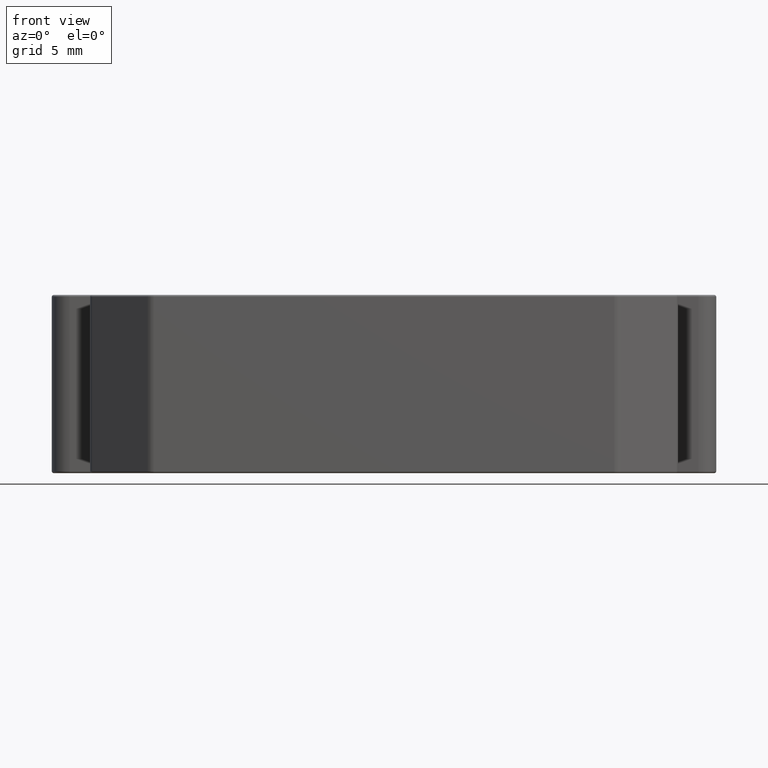
[diagram: clean part render]
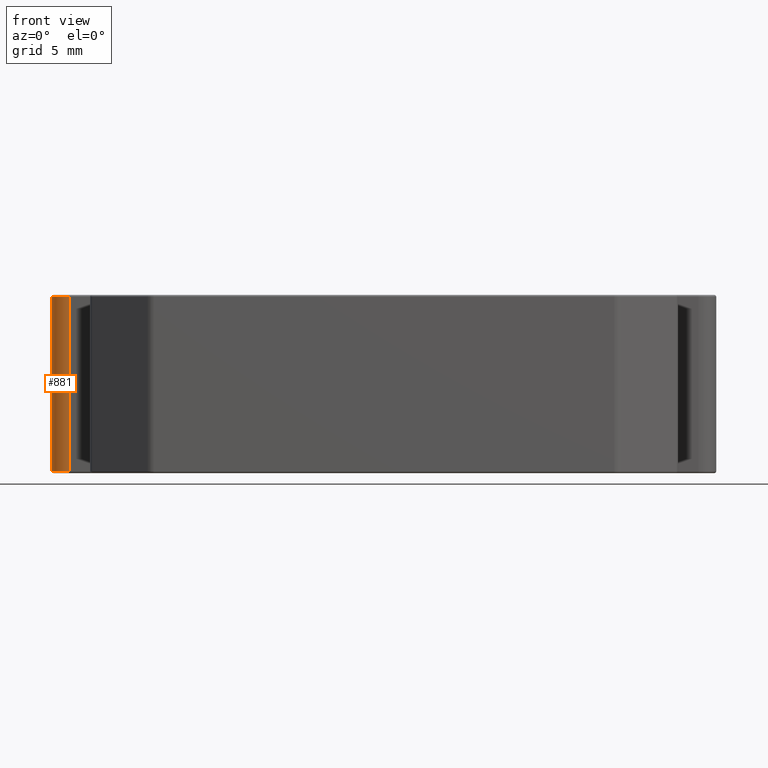
[diagram: same view with one face highlighted and labeled with its STEP entity id]
A machine part, front view. The second image highlights one B-rep face of the part: STEP entity #881.
In plain terms, the highlighted cylindrical surface (edge-blend (fillet) strip) has radius 1 mm, axis along (0, 0, 1).
Its self-contained STEP definition (entity closure, byte-faithful):
#3 = VERTEX_POINT ( 'NONE', #147 ) ;
#122 = VECTOR ( 'NONE', #2466, 1000.000000000000000 ) ;
#140 = VERTEX_POINT ( 'NONE', #2900 ) ;
#147 = CARTESIAN_POINT ( 'NONE',  ( -17.98039802197973500, 10.94384169598078000, 4.899999999999998600 ) ) ;
#293 = CARTESIAN_POINT ( 'NONE',  ( -17.98039802197973500, 10.94384169598078000, -5.000000000000000000 ) ) ;
#296 = CIRCLE ( 'NONE', #2524, 1.000000000000000900 ) ;
#346 = CARTESIAN_POINT ( 'NONE',  ( -17.64999999999999900, 9.999999999999998200, 4.899999999999998600 ) ) ;
#502 = VERTEX_POINT ( 'NONE', #2887 ) ;
#510 = DIRECTION ( 'NONE',  ( 1.000000000000000000, 0.0000000000000000000, 0.0000000000000000000 ) ) ;
#511 = LINE ( 'NONE', #293, #1156 ) ;
#528 = AXIS2_PLACEMENT_3D ( 'NONE', #346, #1092, #2539 ) ;
#643 = EDGE_CURVE ( 'NONE', #140, #502, #296, .T. ) ;
#827 = DIRECTION ( 'NONE',  ( 0.0000000000000000000, 0.0000000000000000000, 1.000000000000000000 ) ) ;
#881 = ADVANCED_FACE ( 'NONE', ( #1170 ), #1090, .T. ) ;
#1090 = CYLINDRICAL_SURFACE ( 'NONE', #1498, 1.000000000000000900 ) ;
#1091 = DIRECTION ( 'NONE',  ( 1.000000000000000000, 0.0000000000000000000, 0.0000000000000000000 ) ) ;
#1092 = DIRECTION ( 'NONE',  ( -0.0000000000000000000, -0.0000000000000000000, -1.000000000000000000 ) ) ;
#1156 = VECTOR ( 'NONE', #2457, 1000.000000000000000 ) ;
#1170 = FACE_OUTER_BOUND ( 'NONE', #2527, .T. ) ;
#1294 = VERTEX_POINT ( 'NONE', #1547 ) ;
#1498 = AXIS2_PLACEMENT_3D ( 'NONE', #2554, #827, #1091 ) ;
#1515 = CARTESIAN_POINT ( 'NONE',  ( -17.64999999999999900, 8.999999999999998200, -5.000000000000000000 ) ) ;
#1547 = CARTESIAN_POINT ( 'NONE',  ( -17.64999999999999900, 8.999999999999998200, 4.899999999999998600 ) ) ;
#1715 = ORIENTED_EDGE ( 'NONE', *, *, #2879, .F. ) ;
#2000 = LINE ( 'NONE', #1515, #122 ) ;
#2359 = EDGE_CURVE ( 'NONE', #1294, #3, #2691, .T. ) ;
#2438 = DIRECTION ( 'NONE',  ( 0.0000000000000000000, 0.0000000000000000000, 1.000000000000000000 ) ) ;
#2457 = DIRECTION ( 'NONE',  ( 0.0000000000000000000, 0.0000000000000000000, 1.000000000000000000 ) ) ;
#2459 = CARTESIAN_POINT ( 'NONE',  ( -17.64999999999999900, 9.999999999999998200, -4.899999999999999500 ) ) ;
#2466 = DIRECTION ( 'NONE',  ( 0.0000000000000000000, 0.0000000000000000000, 1.000000000000000000 ) ) ;
#2516 = ORIENTED_EDGE ( 'NONE', *, *, #643, .T. ) ;
#2524 = AXIS2_PLACEMENT_3D ( 'NONE', #2459, #2438, #510 ) ;
#2527 = EDGE_LOOP ( 'NONE', ( #2631, #2927, #1715, #2516 ) ) ;
#2539 = DIRECTION ( 'NONE',  ( 1.000000000000000000, 0.0000000000000000000, 0.0000000000000000000 ) ) ;
#2554 = CARTESIAN_POINT ( 'NONE',  ( -17.64999999999999900, 9.999999999999998200, -5.000000000000000000 ) ) ;
#2631 = ORIENTED_EDGE ( 'NONE', *, *, #3001, .T. ) ;
#2691 = CIRCLE ( 'NONE', #528, 1.000000000000000900 ) ;
#2879 = EDGE_CURVE ( 'NONE', #140, #3, #511, .T. ) ;
#2887 = CARTESIAN_POINT ( 'NONE',  ( -17.64999999999999900, 8.999999999999998200, -4.899999999999999500 ) ) ;
#2900 = CARTESIAN_POINT ( 'NONE',  ( -17.98039802197973500, 10.94384169598078000, -4.899999999999999500 ) ) ;
#2927 = ORIENTED_EDGE ( 'NONE', *, *, #2359, .T. ) ;
#3001 = EDGE_CURVE ( 'NONE', #502, #1294, #2000, .T. ) ;